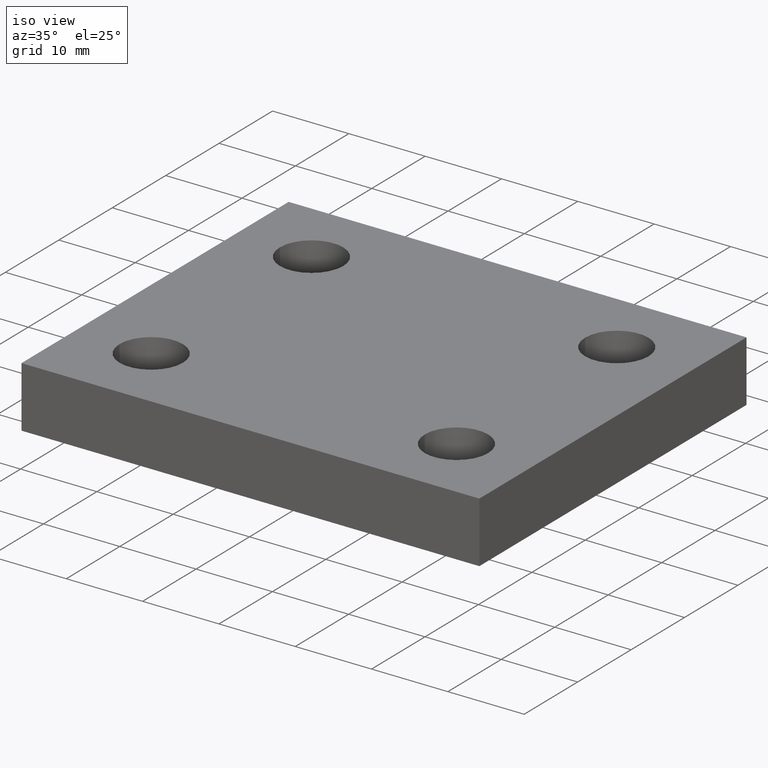
[diagram: clean part render]
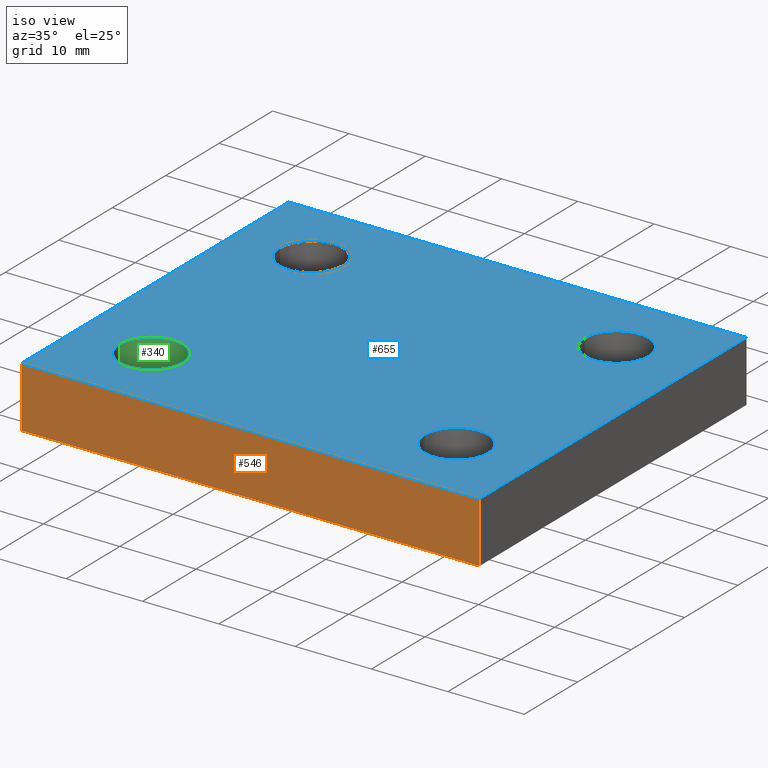
[diagram: same view with three faces highlighted in distinct colors, each labeled with its STEP entity id]
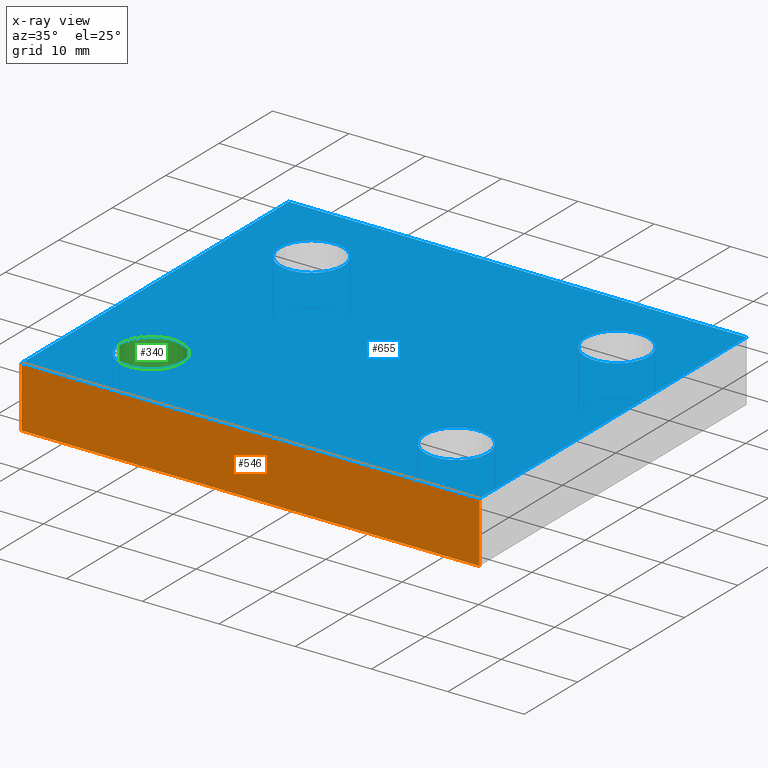
[diagram: x-ray of the same camera — body ghosted, the three highlighted faces saturated]
A machine part, iso view with three faces highlighted in distinct colors.
The next image is the same camera in x-ray (body ghosted, the three faces saturated) — at least one of them is partly hidden behind the body in this view.
Their STEP definitions:

[orange] entity #546 — the highlighted planar face has unit normal (0, -1, 0).
#483=CARTESIAN_POINT('',(75.939752180801733,-54.027373815230888,8.0));
#484=VERTEX_POINT('',#483);
#491=CARTESIAN_POINT('',(75.939752180801733,-54.027373815230888,0.0));
#492=VERTEX_POINT('',#491);
#493=CARTESIAN_POINT('',(75.939752180801733,-54.027373815230888,0.0));
#494=DIRECTION('',(0.0,0.0,1.0));
#495=VECTOR('',#494,8.0);
#496=LINE('',#493,#495);
#497=EDGE_CURVE('',#492,#484,#496,.T.);
#516=CARTESIAN_POINT('',(75.939752180801733,-54.027373815230888,0.0));
#517=DIRECTION('',(0.0,-1.0,0.0));
#518=DIRECTION('',(0.0,0.0,-1.0));
#519=AXIS2_PLACEMENT_3D('',#516,#517,#518);
#520=PLANE('',#519);
#521=CARTESIAN_POINT('',(15.939752180801719,-54.027373815230895,8.0));
#522=VERTEX_POINT('',#521);
#523=CARTESIAN_POINT('',(75.939752180801733,-54.027373815230888,8.0));
#524=DIRECTION('',(-1.0,0.0,0.0));
#525=VECTOR('',#524,60.000000000000014);
#526=LINE('',#523,#525);
#527=EDGE_CURVE('',#484,#522,#526,.T.);
#528=ORIENTED_EDGE('',*,*,#527,.T.);
#529=CARTESIAN_POINT('',(15.939752180801719,-54.027373815230895,0.0));
#530=VERTEX_POINT('',#529);
#531=CARTESIAN_POINT('',(15.939752180801719,-54.027373815230895,0.0));
#532=DIRECTION('',(0.0,0.0,1.0));
#533=VECTOR('',#532,8.0);
#534=LINE('',#531,#533);
#535=EDGE_CURVE('',#530,#522,#534,.T.);
#536=ORIENTED_EDGE('',*,*,#535,.F.);
#537=CARTESIAN_POINT('',(15.939752180801719,-54.027373815230895,0.0));
#538=DIRECTION('',(1.0,0.0,0.0));
#539=VECTOR('',#538,60.000000000000014);
#540=LINE('',#537,#539);
#541=EDGE_CURVE('',#530,#492,#540,.T.);
#542=ORIENTED_EDGE('',*,*,#541,.T.);
#543=ORIENTED_EDGE('',*,*,#497,.T.);
#544=EDGE_LOOP('',(#528,#536,#542,#543));
#545=FACE_OUTER_BOUND('',#544,.T.);
#546=ADVANCED_FACE('',(#545),#520,.T.);

[blue] entity #655 — the highlighted planar face has unit normal (0, 0, 1).
#72=CARTESIAN_POINT('',(70.089752180801710,-44.027373815230888,8.0));
#73=VERTEX_POINT('',#72);
#89=CARTESIAN_POINT('',(61.789752180801720,-44.027373815230888,8.0));
#90=VERTEX_POINT('',#89);
#97=CARTESIAN_POINT('',(65.939752180801719,-44.027373815230888,8.0));
#98=DIRECTION('',(0.0,0.0,-1.0));
#99=DIRECTION('',(1.0,0.0,0.0));
#100=AXIS2_PLACEMENT_3D('',#97,#98,#99);
#101=CIRCLE('',#100,4.150000000000000);
#102=EDGE_CURVE('',#73,#90,#101,.T.);
#135=CARTESIAN_POINT('',(70.089752180801725,-14.027373815230897,8.0));
#136=VERTEX_POINT('',#135);
#152=CARTESIAN_POINT('',(61.789752180801720,-14.027373815230897,8.0));
#153=VERTEX_POINT('',#152);
#160=CARTESIAN_POINT('',(65.939752180801719,-14.027373815230897,8.0));
#161=DIRECTION('',(0.0,0.0,-1.0));
#162=DIRECTION('',(1.0,0.0,0.0));
#163=AXIS2_PLACEMENT_3D('',#160,#161,#162);
#164=CIRCLE('',#163,4.150000000000000);
#165=EDGE_CURVE('',#136,#153,#164,.T.);
#198=CARTESIAN_POINT('',(30.089752180801721,-14.027373815230897,8.0));
#199=VERTEX_POINT('',#198);
#215=CARTESIAN_POINT('',(21.789752180801720,-14.027373815230897,8.0));
#216=VERTEX_POINT('',#215);
#223=CARTESIAN_POINT('',(25.939752180801719,-14.027373815230897,8.0));
#224=DIRECTION('',(0.0,0.0,-1.0));
#225=DIRECTION('',(1.0,0.0,0.0));
#226=AXIS2_PLACEMENT_3D('',#223,#224,#225);
#227=CIRCLE('',#226,4.150000000000000);
#228=EDGE_CURVE('',#199,#216,#227,.T.);
#261=CARTESIAN_POINT('',(30.089752180801721,-44.027373815230888,8.0));
#262=VERTEX_POINT('',#261);
#278=CARTESIAN_POINT('',(21.789752180801720,-44.027373815230888,8.0));
#279=VERTEX_POINT('',#278);
#286=CARTESIAN_POINT('',(25.939752180801719,-44.027373815230888,8.0));
#287=DIRECTION('',(0.0,0.0,-1.0));
#288=DIRECTION('',(1.0,0.0,0.0));
#289=AXIS2_PLACEMENT_3D('',#286,#287,#288);
#290=CIRCLE('',#289,4.150000000000000);
#291=EDGE_CURVE('',#262,#279,#290,.T.);
#323=CARTESIAN_POINT('',(25.939752180801719,-44.027373815230888,8.0));
#324=DIRECTION('',(0.0,0.0,-1.0));
#325=DIRECTION('',(1.0,0.0,0.0));
#326=AXIS2_PLACEMENT_3D('',#323,#324,#325);
#327=CIRCLE('',#326,4.150000000000000);
#328=EDGE_CURVE('',#279,#262,#327,.T.);
#368=CARTESIAN_POINT('',(25.939752180801719,-14.027373815230897,8.0));
#369=DIRECTION('',(0.0,0.0,-1.0));
#370=DIRECTION('',(1.0,0.0,0.0));
#371=AXIS2_PLACEMENT_3D('',#368,#369,#370);
#372=CIRCLE('',#371,4.150000000000000);
#373=EDGE_CURVE('',#216,#199,#372,.T.);
#413=CARTESIAN_POINT('',(65.939752180801719,-14.027373815230897,8.0));
#414=DIRECTION('',(0.0,0.0,-1.0));
#415=DIRECTION('',(1.0,0.0,0.0));
#416=AXIS2_PLACEMENT_3D('',#413,#414,#415);
#417=CIRCLE('',#416,4.150000000000000);
#418=EDGE_CURVE('',#153,#136,#417,.T.);
#458=CARTESIAN_POINT('',(65.939752180801719,-44.027373815230888,8.0));
#459=DIRECTION('',(0.0,0.0,-1.0));
#460=DIRECTION('',(1.0,0.0,0.0));
#461=AXIS2_PLACEMENT_3D('',#458,#459,#460);
#462=CIRCLE('',#461,4.150000000000000);
#463=EDGE_CURVE('',#90,#73,#462,.T.);
#481=CARTESIAN_POINT('',(75.939752180801690,-4.027373815230892,8.0));
#482=VERTEX_POINT('',#481);
#483=CARTESIAN_POINT('',(75.939752180801733,-54.027373815230888,8.0));
#484=VERTEX_POINT('',#483);
#485=CARTESIAN_POINT('',(75.939752180801690,-4.027373815230892,8.0));
#486=DIRECTION('',(0.0,-1.0,0.0));
#487=VECTOR('',#486,49.999999999999993);
#488=LINE('',#485,#487);
#489=EDGE_CURVE('',#482,#484,#488,.T.);
#521=CARTESIAN_POINT('',(15.939752180801719,-54.027373815230895,8.0));
#522=VERTEX_POINT('',#521);
#523=CARTESIAN_POINT('',(75.939752180801733,-54.027373815230888,8.0));
#524=DIRECTION('',(-1.0,0.0,0.0));
#525=VECTOR('',#524,60.000000000000014);
#526=LINE('',#523,#525);
#527=EDGE_CURVE('',#484,#522,#526,.T.);
#552=CARTESIAN_POINT('',(15.939752180801712,-4.027373815230897,8.0));
#553=VERTEX_POINT('',#552);
#554=CARTESIAN_POINT('',(15.939752180801719,-54.027373815230895,8.0));
#555=DIRECTION('',(0.0,1.0,0.0));
#556=VECTOR('',#555,50.0);
#557=LINE('',#554,#556);
#558=EDGE_CURVE('',#522,#553,#557,.T.);
#583=CARTESIAN_POINT('',(15.939752180801712,-4.027373815230897,8.0));
#584=DIRECTION('',(1.0,0.0,0.0));
#585=VECTOR('',#584,59.999999999999979);
#586=LINE('',#583,#585);
#587=EDGE_CURVE('',#553,#482,#586,.T.);
#628=CARTESIAN_POINT('',(45.939752180801712,-29.027373815230888,8.0));
#629=DIRECTION('',(0.0,0.0,1.0));
#630=DIRECTION('',(1.0,0.0,0.0));
#631=AXIS2_PLACEMENT_3D('',#628,#629,#630);
#632=PLANE('',#631);
#633=ORIENTED_EDGE('',*,*,#489,.F.);
#634=ORIENTED_EDGE('',*,*,#587,.F.);
#635=ORIENTED_EDGE('',*,*,#558,.F.);
#636=ORIENTED_EDGE('',*,*,#527,.F.);
#637=EDGE_LOOP('',(#633,#634,#635,#636));
#638=FACE_OUTER_BOUND('',#637,.T.);
#639=ORIENTED_EDGE('',*,*,#291,.T.);
#640=ORIENTED_EDGE('',*,*,#328,.T.);
#641=EDGE_LOOP('',(#639,#640));
#642=FACE_BOUND('',#641,.T.);
#643=ORIENTED_EDGE('',*,*,#228,.T.);
#644=ORIENTED_EDGE('',*,*,#373,.T.);
#645=EDGE_LOOP('',(#643,#644));
#646=FACE_BOUND('',#645,.T.);
#647=ORIENTED_EDGE('',*,*,#165,.T.);
#648=ORIENTED_EDGE('',*,*,#418,.T.);
#649=EDGE_LOOP('',(#647,#648));
#650=FACE_BOUND('',#649,.T.);
#651=ORIENTED_EDGE('',*,*,#102,.T.);
#652=ORIENTED_EDGE('',*,*,#463,.T.);
#653=EDGE_LOOP('',(#651,#652));
#654=FACE_BOUND('',#653,.T.);
#655=ADVANCED_FACE('',(#638,#642,#646,#650,#654),#632,.T.);

[green] entity #340 — the highlighted face is a freeform B-spline surface patch.
#259=CARTESIAN_POINT('',(30.089752180801721,-44.027373815230888,0.0));
#260=VERTEX_POINT('',#259);
#261=CARTESIAN_POINT('',(30.089752180801721,-44.027373815230888,8.0));
#262=VERTEX_POINT('',#261);
#263=CARTESIAN_POINT('',(30.089752180801721,-44.027373815230888,0.0));
#264=DIRECTION('',(0.0,0.0,1.0));
#265=VECTOR('',#264,8.0);
#266=LINE('',#263,#265);
#267=EDGE_CURVE('',#260,#262,#266,.T.);
#269=CARTESIAN_POINT('',(21.789752180801720,-44.027373815230888,0.0));
#270=VERTEX_POINT('',#269);
#278=CARTESIAN_POINT('',(21.789752180801720,-44.027373815230888,8.0));
#279=VERTEX_POINT('',#278);
#280=CARTESIAN_POINT('',(21.789752180801720,-44.027373815230888,8.0));
#281=DIRECTION('',(0.0,0.0,-1.0));
#282=VECTOR('',#281,8.0);
#283=LINE('',#280,#282);
#284=EDGE_CURVE('',#279,#270,#283,.T.);
#296=CARTESIAN_POINT('',(21.789752180801720,-44.027373815230888,8.0));
#297=CARTESIAN_POINT('',(21.789752180801720,-44.027373815230888,0.0));
#298=CARTESIAN_POINT('',(21.789752180801720,-48.177373815230887,8.0));
#299=CARTESIAN_POINT('',(21.789752180801720,-48.177373815230887,0.0));
#300=CARTESIAN_POINT('',(25.939752180801719,-48.177373815230887,8.0));
#301=CARTESIAN_POINT('',(25.939752180801719,-48.177373815230887,0.0));
#302=CARTESIAN_POINT('',(30.089752180801721,-48.177373815230887,8.0));
#303=CARTESIAN_POINT('',(30.089752180801721,-48.177373815230887,0.0));
#304=CARTESIAN_POINT('',(30.089752180801717,-44.027373815230888,8.0));
#305=CARTESIAN_POINT('',(30.089752180801717,-44.027373815230888,0.0));
#306=CARTESIAN_POINT('',(30.089752180801721,-39.877373815230889,8.0));
#307=CARTESIAN_POINT('',(30.089752180801721,-39.877373815230889,0.0));
#308=CARTESIAN_POINT('',(25.939752180801719,-39.877373815230889,8.0));
#309=CARTESIAN_POINT('',(25.939752180801719,-39.877373815230889,0.0));
#310=CARTESIAN_POINT('',(21.789752180801720,-39.877373815230889,8.0));
#311=CARTESIAN_POINT('',(21.789752180801720,-39.877373815230889,0.0));
#312=CARTESIAN_POINT('',(21.789752180801720,-44.027373815230888,8.0));
#313=CARTESIAN_POINT('',(21.789752180801720,-44.027373815230888,0.0));
#321=(BOUNDED_SURFACE()B_SPLINE_SURFACE(1,2,((#296,#298,#300,#302,#304,#306,#308,#310,#312),(#297,#299,#301,#303,#305,#307,#309,#311,#313)),.UNSPECIFIED.,.F.,.T.,.U.)B_SPLINE_SURFACE_WITH_KNOTS((2,2),(3,2,2,2,3),(-0.963855421686747,0.963855421686747),(0.0,6.518804756198821,13.037609512397642,19.556414268596463,26.075219024795285),.UNSPECIFIED.)GEOMETRIC_REPRESENTATION_ITEM()RATIONAL_B_SPLINE_SURFACE(((1.0,0.707106781186548,1.0,0.707106781186548,1.0,0.707106781186548,1.0,0.707106781186548,1.0),(1.0,0.707106781186548,1.0,0.707106781186548,1.0,0.707106781186548,1.0,0.707106781186548,1.0)))REPRESENTATION_ITEM('')SURFACE());
#322=ORIENTED_EDGE('',*,*,#267,.T.);
#323=CARTESIAN_POINT('',(25.939752180801719,-44.027373815230888,8.0));
#324=DIRECTION('',(0.0,0.0,-1.0));
#325=DIRECTION('',(1.0,0.0,0.0));
#326=AXIS2_PLACEMENT_3D('',#323,#324,#325);
#327=CIRCLE('',#326,4.150000000000000);
#328=EDGE_CURVE('',#279,#262,#327,.T.);
#329=ORIENTED_EDGE('',*,*,#328,.F.);
#330=ORIENTED_EDGE('',*,*,#284,.T.);
#331=CARTESIAN_POINT('',(25.939752180801719,-44.027373815230888,0.0));
#332=DIRECTION('',(0.0,0.0,1.0));
#333=DIRECTION('',(1.0,0.0,0.0));
#334=AXIS2_PLACEMENT_3D('',#331,#332,#333);
#335=CIRCLE('',#334,4.150000000000000);
#336=EDGE_CURVE('',#260,#270,#335,.T.);
#337=ORIENTED_EDGE('',*,*,#336,.F.);
#338=EDGE_LOOP('',(#322,#329,#330,#337));
#339=FACE_OUTER_BOUND('',#338,.T.);
#340=ADVANCED_FACE('',(#339),#321,.F.);